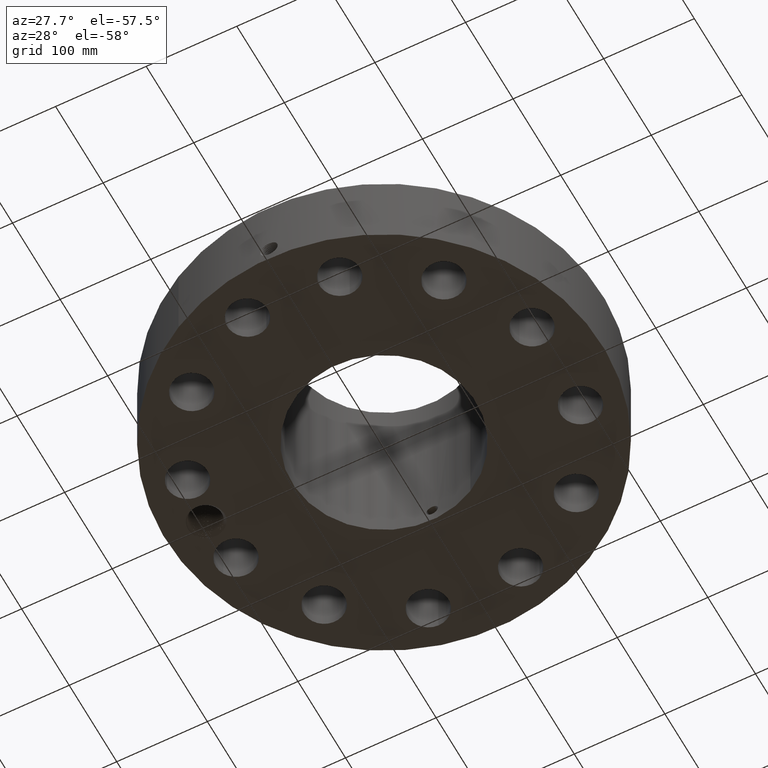
[diagram: clean part render]
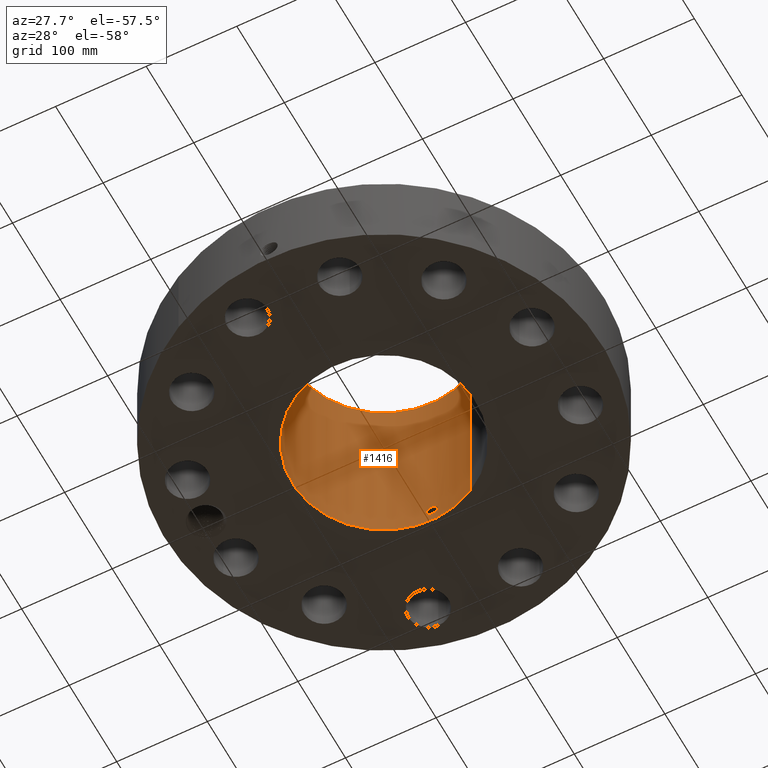
[diagram: same view with one face highlighted and labeled with its STEP entity id]
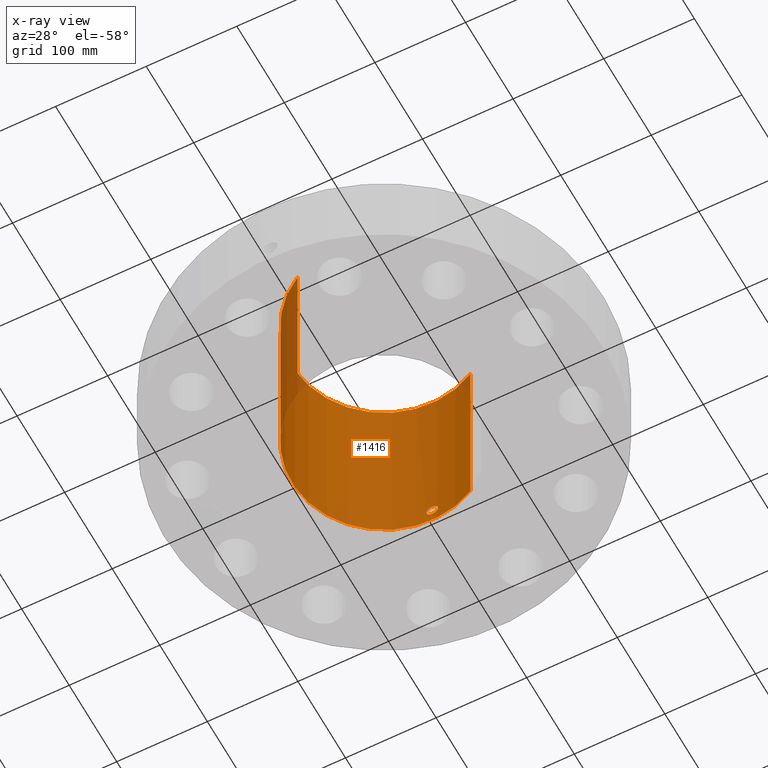
[diagram: x-ray of the same camera — body ghosted, the highlighted face saturated]
A machine part, auxiliary view. The second image highlights one B-rep face of the part: STEP entity #1416.
The next image is the same camera in x-ray: the body ghosted, the highlighted face saturated — about 7% of this face is hidden behind the body in this view.
In plain terms, the highlighted cylindrical surface (partial cylindrical patch) has radius 101.359 mm, axis along (0, 0, -1).
Its self-contained STEP definition (entity closure, byte-faithful):
#271=AXIS2_PLACEMENT_3D('Circle Axis2P3D',#269,#270,$) ;
#1293=AXIS2_PLACEMENT_3D('Cylinder Axis2P3D',#1290,#1291,#1292) ;
#1365=AXIS2_PLACEMENT_3D('Circle Axis2P3D',#1363,#1364,$) ;
#264=CARTESIAN_POINT('Vertex',(1.91314761181,3.50199321324,0.250000000001)) ;
#266=CARTESIAN_POINT('Vertex',(-1.91314761181,-3.50199321324,0.250000000001)) ;
#269=CARTESIAN_POINT('Axis2P3D Location',(0.,0.,0.250000000001)) ;
#1290=CARTESIAN_POINT('Axis2P3D Location',(0.,0.,4.44000000002)) ;
#1299=CARTESIAN_POINT('Vertex',(1.91314761181,3.50199321324,8.63000000003)) ;
#1301=CARTESIAN_POINT('Vertex',(-1.91314761181,-3.50199321324,8.63000000003)) ;
#1304=CARTESIAN_POINT('Line Origine',(1.91314761181,3.50199321324,4.44000000002)) ;
#1309=CARTESIAN_POINT('Line Origine',(-1.91314761181,-3.50199321324,4.44000000002)) ;
#1363=CARTESIAN_POINT('Axis2P3D Location',(0.,0.,8.63000000003)) ;
#1375=CARTESIAN_POINT('Control Point',(0.219395640473,3.98446430566,1.05985638466)) ;
#1376=CARTESIAN_POINT('Control Point',(0.206921908811,3.98515114387,1.08268939731)) ;
#1377=CARTESIAN_POINT('Control Point',(0.191479279905,3.98595249709,1.1038970278)) ;
#1378=CARTESIAN_POINT('Control Point',(0.173347861492,3.98680640055,1.12296726746)) ;
#1379=CARTESIAN_POINT('Control Point',(0.112155204367,3.98927553641,1.17243597154)) ;
#1380=CARTESIAN_POINT('Control Point',(0.0350142039014,3.99087971721,1.19596590749)) ;
#1381=CARTESIAN_POINT('Control Point',(-0.0195261078786,3.99100007172,1.19761227336)) ;
#1382=CARTESIAN_POINT('Control Point',(-0.124101324623,3.98923588509,1.17248752496)) ;
#1383=CARTESIAN_POINT('Control Point',(-0.203140141406,3.98558147934,1.09961587454)) ;
#1384=CARTESIAN_POINT('Control Point',(-0.232127874415,3.9837808419,1.05342363841)) ;
#1385=CARTESIAN_POINT('Control Point',(-0.255826572321,3.98229644891,0.975258636317)) ;
#1386=CARTESIAN_POINT('Control Point',(-0.248307422955,3.98276700729,0.895848031709)) ;
#1387=CARTESIAN_POINT('Control Point',(-0.242073059857,3.98316297559,0.869246036418)) ;
#1388=CARTESIAN_POINT('Control Point',(-0.232330621089,3.9837520698,0.84382093855)) ;
#1389=CARTESIAN_POINT('Control Point',(-0.219395640473,3.98446430566,0.820143615352)) ;
#1390=CARTESIAN_POINT('Vertex',(0.219395640473,3.98446430566,1.05985638466)) ;
#1392=CARTESIAN_POINT('Vertex',(-0.219395640473,3.98446430566,0.820143615352)) ;
#1396=CARTESIAN_POINT('Control Point',(-0.219395640473,3.98446430566,0.820143615352)) ;
#1397=CARTESIAN_POINT('Control Point',(-0.206921908816,3.98515114387,0.79731060271)) ;
#1398=CARTESIAN_POINT('Control Point',(-0.191479279918,3.98595249709,0.776102972227)) ;
#1399=CARTESIAN_POINT('Control Point',(-0.173347861473,3.98680640055,0.757032732536)) ;
#1400=CARTESIAN_POINT('Control Point',(-0.112155204356,3.98927553641,0.707564028461)) ;
#1401=CARTESIAN_POINT('Control Point',(-0.0350142039018,3.99087971721,0.684034092514)) ;
#1402=CARTESIAN_POINT('Control Point',(0.0195261078839,3.99100007172,0.682387726654)) ;
#1403=CARTESIAN_POINT('Control Point',(0.124101324601,3.98923588509,0.707512475044)) ;
#1404=CARTESIAN_POINT('Control Point',(0.20314014137,3.98558147934,0.780384125439)) ;
#1405=CARTESIAN_POINT('Control Point',(0.232127874431,3.9837808419,0.826576361652)) ;
#1406=CARTESIAN_POINT('Control Point',(0.255826572324,3.98229644891,0.904741363736)) ;
#1407=CARTESIAN_POINT('Control Point',(0.248307422951,3.98276700729,0.984151968336)) ;
#1408=CARTESIAN_POINT('Control Point',(0.24207305987,3.98316297559,1.01075396356)) ;
#1409=CARTESIAN_POINT('Control Point',(0.232330621098,3.9837520698,1.03617906144)) ;
#1410=CARTESIAN_POINT('Control Point',(0.219395640473,3.98446430566,1.05985638466)) ;
#270=DIRECTION('Axis2P3D Direction',(0.,0.,-0.0393700787402)) ;
#1291=DIRECTION('Axis2P3D Direction',(0.,0.,-0.0393700787402)) ;
#1292=DIRECTION('Axis2P3D XDirection',(-0.0188750212049,-0.0345504945626,0.)) ;
#1305=DIRECTION('Vector Direction',(0.,0.,-0.0393700787402)) ;
#1310=DIRECTION('Vector Direction',(0.,0.,-0.0393700787402)) ;
#1364=DIRECTION('Axis2P3D Direction',(0.,0.,-0.0393700787402)) ;
#1306=VECTOR('Line Direction',#1305,0.0393700787402) ;
#1311=VECTOR('Line Direction',#1310,0.0393700787402) ;
#1369=ORIENTED_EDGE('',*,*,#1367,.F.) ;
#1370=ORIENTED_EDGE('',*,*,#1313,.T.) ;
#1371=ORIENTED_EDGE('',*,*,#273,.T.) ;
#1372=ORIENTED_EDGE('',*,*,#1308,.F.) ;
#1413=ORIENTED_EDGE('',*,*,#1394,.F.) ;
#1414=ORIENTED_EDGE('',*,*,#1411,.F.) ;
#1415=FACE_BOUND('',#1412,.T.) ;
#1416=ADVANCED_FACE('PartBody',(#1373,#1415),#1294,.F.) ;
#1374=B_SPLINE_CURVE_WITH_KNOTS('',5,(#1375,#1376,#1377,#1378,#1379,#1380,#1381,#1382,#1383,#1384,#1385,#1386,#1387,#1388,#1389),.UNSPECIFIED.,.F.,.U.,(6,3,3,3,6),(0.,4.67460828178,14.0214498483,23.3713998556,28.2188640427),.UNSPECIFIED.) ;
#1395=B_SPLINE_CURVE_WITH_KNOTS('',5,(#1396,#1397,#1398,#1399,#1400,#1401,#1402,#1403,#1404,#1405,#1406,#1407,#1408,#1409,#1410),.UNSPECIFIED.,.F.,.U.,(6,3,3,3,6),(0.,4.67460827986,14.0214498462,23.371399849,28.2188640392),.UNSPECIFIED.) ;
#272=CIRCLE('generated circle',#271,3.99050000002) ;
#1366=CIRCLE('generated circle',#1365,3.99050000002) ;
#1294=CYLINDRICAL_SURFACE('generated cylinder',#1293,3.99050000002) ;
#273=EDGE_CURVE('',#267,#265,#272,.T.) ;
#1308=EDGE_CURVE('',#1300,#265,#1307,.T.) ;
#1313=EDGE_CURVE('',#1302,#267,#1312,.T.) ;
#1367=EDGE_CURVE('',#1302,#1300,#1366,.T.) ;
#1394=EDGE_CURVE('',#1391,#1393,#1374,.T.) ;
#1411=EDGE_CURVE('',#1393,#1391,#1395,.T.) ;
#1368=EDGE_LOOP('',(#1369,#1370,#1371,#1372)) ;
#1412=EDGE_LOOP('',(#1413,#1414)) ;
#1373=FACE_OUTER_BOUND('',#1368,.T.) ;
#1307=LINE('Line',#1304,#1306) ;
#1312=LINE('Line',#1309,#1311) ;
#265=VERTEX_POINT('',#264) ;
#267=VERTEX_POINT('',#266) ;
#1300=VERTEX_POINT('',#1299) ;
#1302=VERTEX_POINT('',#1301) ;
#1391=VERTEX_POINT('',#1390) ;
#1393=VERTEX_POINT('',#1392) ;